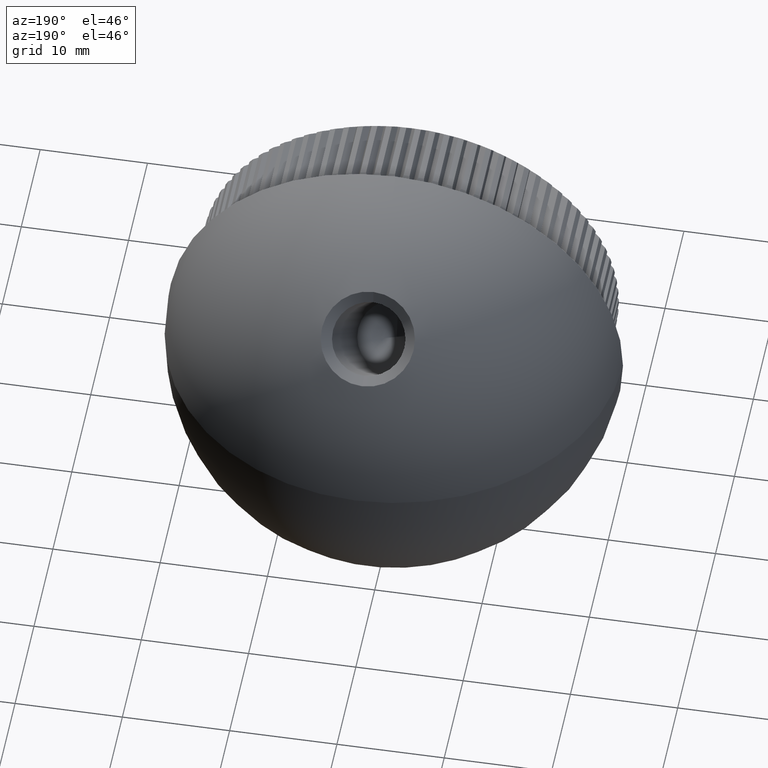
[diagram: clean part render]
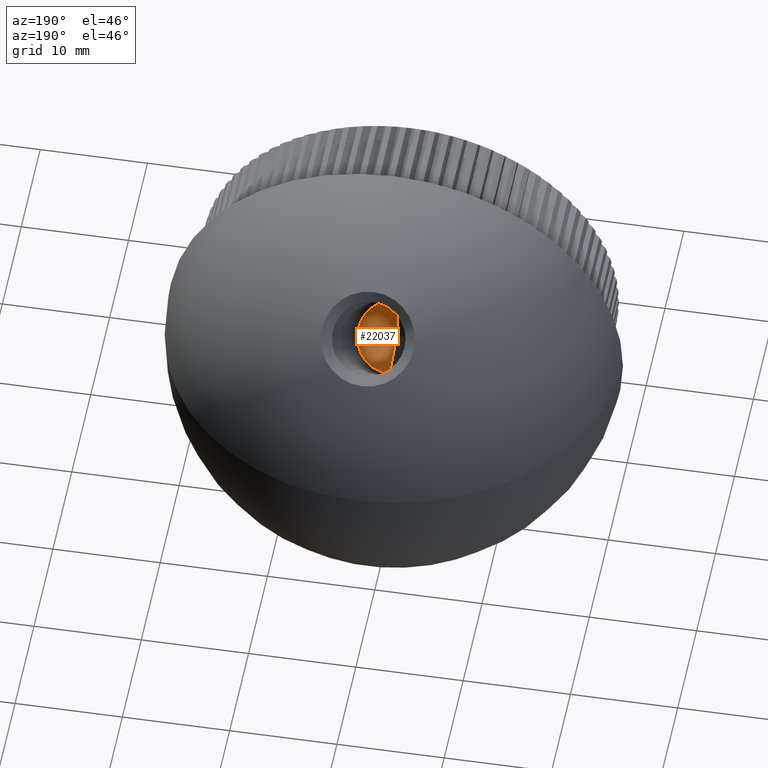
[diagram: same view with one face highlighted and labeled with its STEP entity id]
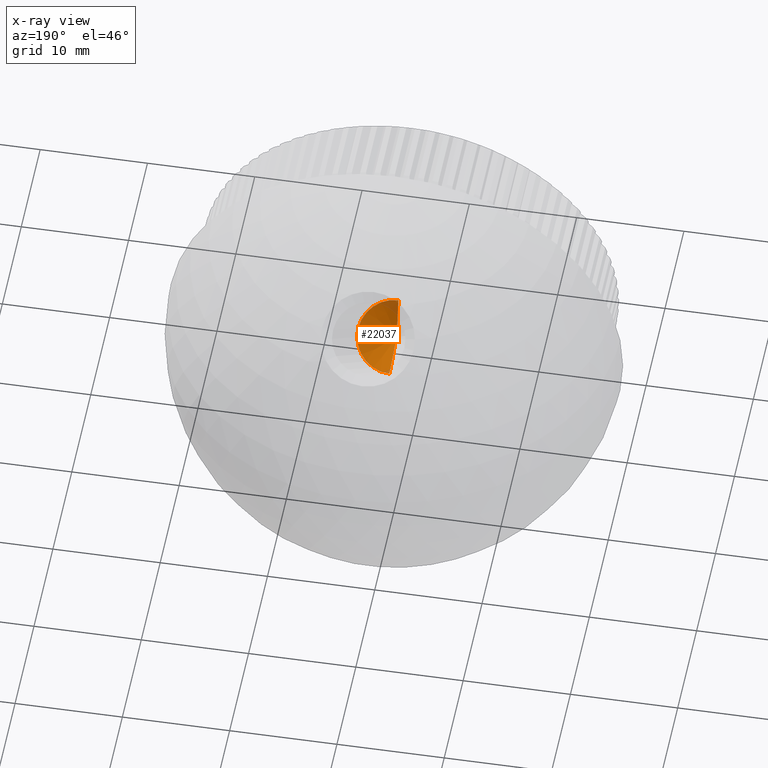
[diagram: x-ray of the same camera — body ghosted, the highlighted face saturated]
A machine part, auxiliary view. The second image highlights one B-rep face of the part: STEP entity #22037.
The next image is the same camera in x-ray: the body ghosted, the highlighted face saturated — about 7% of this face is hidden behind the body in this view.
In plain terms, the highlighted conical surface has half-angle 59 deg.
Its self-contained STEP definition (entity closure, byte-faithful):
#1269 = CIRCLE ( 'NONE', #7562, 3.399999999999995000 ) ;
#1347 = CARTESIAN_POINT ( 'NONE',  ( -1.096426340312313600E-015, 7.444365081389605600, 3.252691193458117100 ) ) ;
#3516 = DIRECTION ( 'NONE',  ( 0.0000000000000000000, -0.7071067811865462400, 0.7071067811865486800 ) ) ;
#5164 = DIRECTION ( 'NONE',  ( -0.0000000000000000000, 0.7071067811865487900, 0.7071067811865462400 ) ) ;
#5456 = EDGE_CURVE ( 'NONE', #22345, #19057, #14455, .T. ) ;
#6874 = VERTEX_POINT ( 'NONE', #1347 ) ;
#7562 = AXIS2_PLACEMENT_3D ( 'NONE', #14260, #5164, #3516 ) ;
#8376 = ORIENTED_EDGE ( 'NONE', *, *, #17145, .T. ) ;
#8496 = VECTOR ( 'NONE', #8612, 1000.000000000000000 ) ;
#8612 = DIRECTION ( 'NONE',  ( 1.049727191138617300E-016, 0.9702957262759965800, -0.2419218955996674200 ) ) ;
#10873 = ORIENTED_EDGE ( 'NONE', *, *, #5456, .F. ) ;
#11891 = CONICAL_SURFACE ( 'NONE', #18980, 3.399999999999995000, 1.029744258676652300 ) ;
#12416 = EDGE_CURVE ( 'NONE', #22345, #6874, #20318, .T. ) ;
#13575 = VECTOR ( 'NONE', #20191, 1000.000000000000100 ) ;
#13896 = CARTESIAN_POINT ( 'NONE',  ( -6.800464286022142300E-016, 12.25269119345811200, -1.555634918610407000 ) ) ;
#14260 = CARTESIAN_POINT ( 'NONE',  ( -1.096426340312313600E-015, 9.848528137423858900, 0.8485281374238546900 ) ) ;
#14455 = LINE ( 'NONE', #19582, #8496 ) ;
#14619 = CARTESIAN_POINT ( 'NONE',  ( -1.096426340312313600E-015, 7.444365081389605600, 3.252691193458117100 ) ) ;
#16684 = EDGE_LOOP ( 'NONE', ( #10873, #20518, #8376 ) ) ;
#16954 = FACE_OUTER_BOUND ( 'NONE', #16684, .T. ) ;
#17145 = EDGE_CURVE ( 'NONE', #6874, #19057, #1269, .T. ) ;
#18980 = AXIS2_PLACEMENT_3D ( 'NONE', #19365, #23200, #19519 ) ;
#19057 = VERTEX_POINT ( 'NONE', #13896 ) ;
#19365 = CARTESIAN_POINT ( 'NONE',  ( -1.096426340312313600E-015, 9.848528137423858900, 0.8485281374238546900 ) ) ;
#19519 = DIRECTION ( 'NONE',  ( 0.0000000000000000000, -0.7071067811865462400, 0.7071067811865486800 ) ) ;
#19582 = CARTESIAN_POINT ( 'NONE',  ( -6.800464286022141400E-016, 12.25269119345811400, -1.555634918610407500 ) ) ;
#20191 = DIRECTION ( 'NONE',  ( 0.0000000000000000000, -0.2419218955996638400, 0.9702957262759973600 ) ) ;
#20318 = LINE ( 'NONE', #14619, #13575 ) ;
#20518 = ORIENTED_EDGE ( 'NONE', *, *, #12416, .T. ) ;
#22037 = ADVANCED_FACE ( 'NONE', ( #16954 ), #11891, .F. ) ;
#22345 = VERTEX_POINT ( 'NONE', #22764 ) ;
#22764 = CARTESIAN_POINT ( 'NONE',  ( -6.495386119903268200E-015, 8.403961235331916400, -0.5960387646680841400 ) ) ;
#23200 = DIRECTION ( 'NONE',  ( -0.0000000000000000000, 0.7071067811865487900, 0.7071067811865462400 ) ) ;